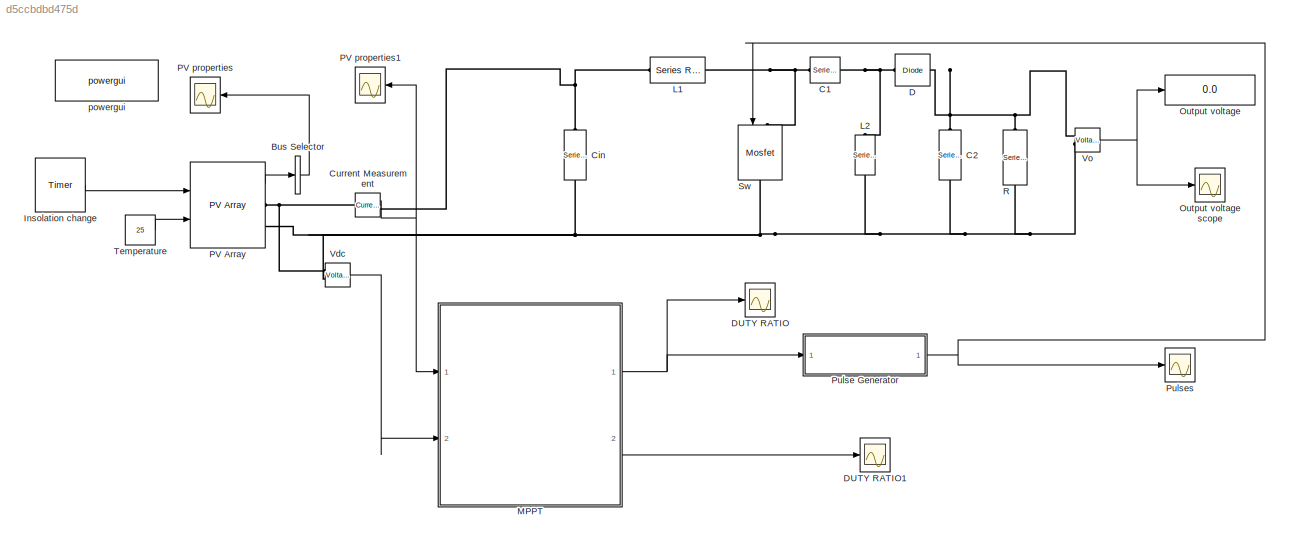
MODEL slx_d5ccbdbd475d
KIND model
CONFIG AbsTol = auto
CONFIG EnableMultiTasking = on
CONFIG FixedStep = 1e-5
CONFIG MaxStep = auto
CONFIG MinStep = auto
CONFIG RelTol = 1e-3
CONFIG SampleTimeConstraint = Unconstrained
CONFIG Solver = ode23
CONFIG SolverName = ode23
CONFIG StartTime = 0.0
CONFIG StopTime = .2
BLOCK [BusSelector] Bus Selector
  OutputAsBus = on
  OutputSignals = V_PV
  Ports = [1, 1]
BLOCK [Reference] C1  REF=powerlib/Elements/Series RLC Branch
  Ports = [0, 0, 0, 0, 0, 1, 1]
  SourceBlock = powerlib/Elements/Series RLC Branch
  SourceProductBaseCode = PS
  SourceProductName = Simscape Power Systems
  SourceType = Series RLC Branch
BLOCK [Reference] C2  REF=powerlib/Elements/Series RLC Branch
  Ports = [0, 0, 0, 0, 0, 1, 1]
  SourceBlock = powerlib/Elements/Series RLC Branch
  SourceProductBaseCode = PS
  SourceProductName = Simscape Power Systems
  SourceType = Series RLC Branch
BLOCK [Reference] Cin  REF=powerlib/Elements/Series RLC Branch
  Ports = [0, 0, 0, 0, 0, 1, 1]
  SourceBlock = powerlib/Elements/Series RLC Branch
  SourceProductBaseCode = PS
  SourceProductName = Simscape Power Systems
  SourceType = Series RLC Branch
BLOCK [Reference] Current Measurement  REF=powerlib/Measurements/Current Measurement
  Ports = [0, 1, 0, 0, 0, 1, 1]
  SourceBlock = powerlib/Measurements/Current Measurement
  SourceProductBaseCode = PS
  SourceProductName = Simscape Power Systems
  SourceType = Current Measurement
  UserDataPersistent = on
BLOCK [Reference] D  REF=powerlib/Power
Electronics/Diode
  Ports = [0, 0, 0, 0, 0, 1, 1]
  SourceBlock = powerlib/Power\nElectronics/Diode
  SourceProductBaseCode = PS
  SourceProductName = Simscape Power Systems
  SourceType = Diode
BLOCK [Scope] DUTY RATIO
  NumInputPorts = 1
  Ports = [1]
  ScopeSpecificationString = Simulink.scopes.TimeScopeBlockCfg('CurrentConfiguration', extmgr.ConfigurationSet(extmgr.Configuration('Core','General UI',true,'FigureColor',[0.501960784313725 0.501960784313725 0.501960784313725]),extmgr.Configuration('Core','Source UI',true),extmgr.Configuration('Sources','WiredSimulink',true,'DataLogging',true,'DataLoggingVariableName','ScopeData1','DataLoggingSaveFormat','StructureWithTime','...<+2865ch>
BLOCK [Scope] DUTY RATIO1
  NumInputPorts = 1
  Ports = [1]
  ScopeSpecificationString = Simulink.scopes.TimeScopeBlockCfg('CurrentConfiguration', extmgr.ConfigurationSet(extmgr.Configuration('Core','General UI',true,'FigureColor',[0.501960784313725 0.501960784313725 0.501960784313725]),extmgr.Configuration('Core','Source UI',true),extmgr.Configuration('Sources','WiredSimulink',true,'DataLogging',true,'DataLoggingVariableName','q','DataLoggingSaveFormat','StructureWithTime','DataLoggi...<+2861ch>
BLOCK [Reference] Insolation change  REF=powerlib_extras/Control 
Blocks/Timer
  Ports = [0, 1]
  SourceBlock = powerlib_extras/Control \nBlocks/Timer
  SourceType = Timer
BLOCK [Reference] L1  REF=powerlib/Elements/Series RLC Branch
  Ports = [0, 0, 0, 0, 0, 1, 1]
  SourceBlock = powerlib/Elements/Series RLC Branch
  SourceProductBaseCode = PS
  SourceProductName = Simscape Power Systems
  SourceType = Series RLC Branch
BLOCK [Reference] L2  REF=powerlib/Elements/Series RLC Branch
  Ports = [0, 0, 0, 0, 0, 1, 1]
  SourceBlock = powerlib/Elements/Series RLC Branch
  SourceProductBaseCode = PS
  SourceProductName = Simscape Power Systems
  SourceType = Series RLC Branch
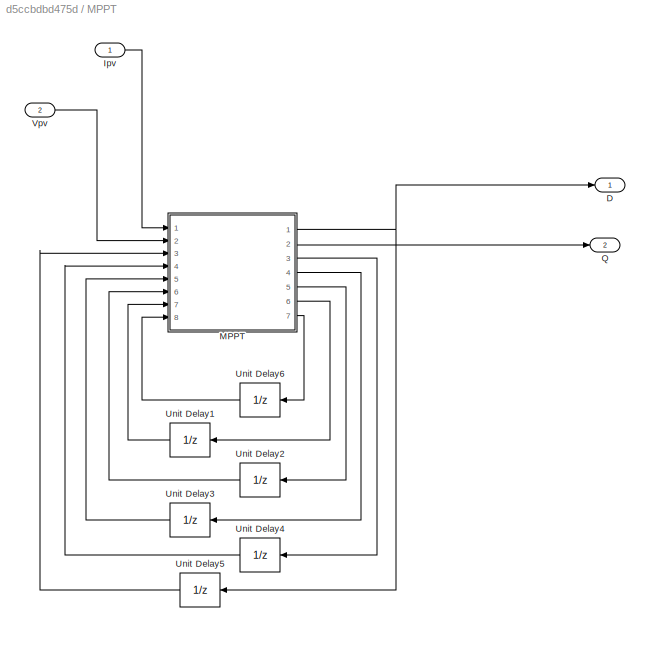
BLOCK [SubSystem] MPPT
  Ports = [2, 2]
  RequestExecContextInheritance = off
  Variant = off
BLOCK [Outport] MPPT/D
  IconDisplay = Port number
BLOCK [Inport] MPPT/Ipv
  IconDisplay = Port number
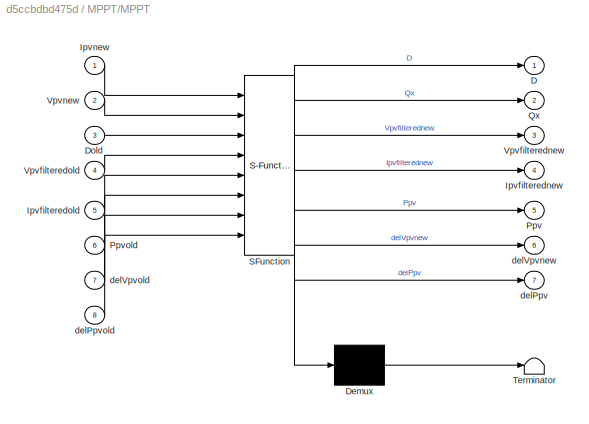
BLOCK [SubSystem] MPPT/MPPT
  ErrorFcn = Stateflow.Translate.translate
  PermitHierarchicalResolution = ExplicitOnly
  Ports = [8, 7]
  RequestExecContextInheritance = off
  SFBlockType = MATLAB Function
  TreatAsAtomicUnit = on
  Variant = off
BLOCK [Demux] MPPT/MPPT/ Demux 
  Outputs = 1
  Ports = [1, 1]
BLOCK [S-Function] MPPT/MPPT/ SFunction 
  EnableBusSupport = on
  FunctionName = sf_sfun
  PortCounts = [8 8]
  Ports = [8, 8]
  SFcnIsStateOwnerBlock = off
  SFunctionDeploymentMode = off
  Tag = Stateflow S-Function AdaptiveMPPT 1
BLOCK [Terminator] MPPT/MPPT/ Terminator 
BLOCK [Outport] MPPT/MPPT/D
  IconDisplay = Port number
BLOCK [Inport] MPPT/MPPT/Dold
  IconDisplay = Port number
  Port = 3
BLOCK [Outport] MPPT/MPPT/Ipvfilterednew
  IconDisplay = Port number
  Port = 4
BLOCK [Inport] MPPT/MPPT/Ipvfilteredold
  IconDisplay = Port number
  Port = 5
BLOCK [Inport] MPPT/MPPT/Ipvnew
  IconDisplay = Port number
BLOCK [Outport] MPPT/MPPT/Ppv
  IconDisplay = Port number
  Port = 5
BLOCK [Inport] MPPT/MPPT/Ppvold
  IconDisplay = Port number
  Port = 6
BLOCK [Outport] MPPT/MPPT/Qx
  IconDisplay = Port number
  Port = 2
BLOCK [Outport] MPPT/MPPT/Vpvfilterednew
  IconDisplay = Port number
  Port = 3
BLOCK [Inport] MPPT/MPPT/Vpvfilteredold
  IconDisplay = Port number
  Port = 4
BLOCK [Inport] MPPT/MPPT/Vpvnew
  IconDisplay = Port number
  Port = 2
BLOCK [Outport] MPPT/MPPT/delPpv
  IconDisplay = Port number
  Port = 7
BLOCK [Inport] MPPT/MPPT/delPpvold
  IconDisplay = Port number
  Port = 8
BLOCK [Outport] MPPT/MPPT/delVpvnew
  IconDisplay = Port number
  Port = 6
BLOCK [Inport] MPPT/MPPT/delVpvold
  IconDisplay = Port number
  Port = 7
BLOCK [Outport] MPPT/Q
  IconDisplay = Port number
  Port = 2
BLOCK [UnitDelay] MPPT/Unit Delay1
  InputProcessing = Columns as channels (frame based)
  SampleTime = 100
BLOCK [UnitDelay] MPPT/Unit Delay2
  InputProcessing = Columns as channels (frame based)
  SampleTime = 100
BLOCK [UnitDelay] MPPT/Unit Delay3
  InputProcessing = Columns as channels (frame based)
  SampleTime = 100
BLOCK [UnitDelay] MPPT/Unit Delay4
  InputProcessing = Columns as channels (frame based)
  SampleTime = 100
BLOCK [UnitDelay] MPPT/Unit Delay5
  InputProcessing = Columns as channels (frame based)
  SampleTime = 100
BLOCK [UnitDelay] MPPT/Unit Delay6
  InputProcessing = Columns as channels (frame based)
  SampleTime = 100
BLOCK [Inport] MPPT/Vpv
  IconDisplay = Port number
  Port = 2
BLOCK [Display] Output voltage
  Decimation = 1
  Ports = [1]
BLOCK [Scope] Output voltage scope
  NumInputPorts = 1
  Ports = [1]
  ScopeSpecificationString = Simulink.scopes.TimeScopeBlockCfg('CurrentConfiguration', extmgr.ConfigurationSet(extmgr.Configuration('Core','General UI',true,'FigureColor',[0.501960784313725 0.501960784313725 0.501960784313725]),extmgr.Configuration('Core','Source UI',true),extmgr.Configuration('Sources','WiredSimulink',true,'DataLogging',true,'DataLoggingVariableName','ScopeData3','DataLoggingSaveFormat','StructureWithTime','...<+3518ch>
BLOCK [Reference] PV Array  REF=re_lib/Solar/PV Array
  Ports = [2, 1, 0, 0, 0, 0, 2]
  SourceBlock = re_lib/Solar/PV Array
  SourceProductBaseCode = PS
  SourceProductName = Simscape Power Systems
  SourceType = PV array
BLOCK [Scope] PV properties
  NumInputPorts = 1
  Ports = [1]
  ScopeSpecificationString = Simulink.scopes.TimeScopeBlockCfg('CurrentConfiguration', extmgr.ConfigurationSet(extmgr.Configuration('Core','General UI',true,'FigureColor',[0.831372549019608 0.815686274509804 0.784313725490196]),extmgr.Configuration('Core','Source UI',true),extmgr.Configuration('Sources','WiredSimulink',true,'DataLogging',true,'DataLoggingSaveFormat','StructureWithTime','DataLoggingDecimation','1','DataLogging...<+2926ch>
BLOCK [Scope] PV properties1
  NumInputPorts = 1
  Ports = [1]
  ScopeSpecificationString = Simulink.scopes.TimeScopeBlockCfg('CurrentConfiguration', extmgr.ConfigurationSet(extmgr.Configuration('Core','General UI',true,'FigureColor',[0.831372549019608 0.815686274509804 0.784313725490196]),extmgr.Configuration('Core','Source UI',true),extmgr.Configuration('Sources','WiredSimulink',true,'DataLoggingSaveFormat','StructureWithTime','DataLoggingDecimation','1','DataLoggingDecimateData',true,...<+2955ch>
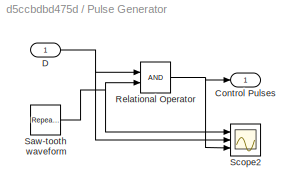
BLOCK [SubSystem] Pulse Generator
  Ports = [1, 1]
  RequestExecContextInheritance = off
  Variant = off
BLOCK [Outport] Pulse Generator/Control Pulses
  IconDisplay = Port number
BLOCK [Inport] Pulse Generator/D
  IconDisplay = Port number
BLOCK [RelationalOperator] Pulse Generator/Relational Operator
  InputSameDT = off
  OutDataTypeStr = boolean
  Ports = [2, 1]
BLOCK [Reference] Pulse Generator/Saw-tooth waveform  REF=simulink/Sources/Repeating
Sequence
  Ports = [0, 1]
  SourceBlock = simulink/Sources/Repeating\nSequence
  SourceProductBaseCode = SL
  SourceProductName = Simulink
  SourceType = Repeating table
BLOCK [Scope] Pulse Generator/Scope2
  NumInputPorts = 3
  Ports = [3]
  ScopeSpecificationString = C++SS(StrPVP('Location','[437, 146, 1019, 578]'),StrPVP('Open','off'),StrPVP('ZoomMode','xonly'),MxPVP('AxesTitles',53,'struct(''axes1'',''Input Voltage'',''axes2'',''Output Voltage'',''axes3'',''Output Current'')'),StrPVP('TimeRange','0.004           '),StrPVP('YMin','5.55112e-017~0.7~0'),StrPVP('YMax','1~0.7~1'),StrPVP('SaveName','ScopeData2'),StrPVP('DataFormat','StructureWithTime'),StrPVP('Blo...<+118ch>
BLOCK [Scope] Pulses
  NumInputPorts = 1
  Ports = [1]
  ScopeSpecificationString = Simulink.scopes.TimeScopeBlockCfg('CurrentConfiguration', extmgr.ConfigurationSet(extmgr.Configuration('Core','General UI',true,'FigureColor',[0.501960784313725 0.501960784313725 0.501960784313725]),extmgr.Configuration('Core','Source UI',true),extmgr.Configuration('Sources','WiredSimulink',true,'DataLogging',true,'DataLoggingVariableName','ScopeData4','DataLoggingSaveFormat','StructureWithTime','...<+2884ch>
BLOCK [Reference] R  REF=powerlib/Elements/Series RLC Branch
  Ports = [0, 0, 0, 0, 0, 1, 1]
  SourceBlock = powerlib/Elements/Series RLC Branch
  SourceProductBaseCode = PS
  SourceProductName = Simscape Power Systems
  SourceType = Series RLC Branch
BLOCK [Reference] Sw  REF=powerlib/Power
Electronics/Mosfet
  Ports = [1, 0, 0, 0, 0, 1, 1]
  SourceBlock = powerlib/Power\nElectronics/Mosfet
  SourceProductBaseCode = PS
  SourceProductName = Simscape Power Systems
  SourceType = Mosfet
BLOCK [Constant] Temperature
  SampleTime = 2e-5
  Value = 25
  VectorParams1D = off
BLOCK [Reference] Vdc   REF=powerlib/Measurements/Voltage Measurement
  AttributesFormatString = \n
  Ports = [0, 1, 0, 0, 0, 2]
  SourceBlock = powerlib/Measurements/Voltage Measurement
  SourceProductBaseCode = PS
  SourceProductName = Simscape Power Systems
  SourceType = Voltage Measurement
  Tag = PoWeRsYsTeMmEaSuReMeNt
BLOCK [Reference] Vo  REF=powerlib/Measurements/Voltage Measurement
  Ports = [0, 1, 0, 0, 0, 2]
  SourceBlock = powerlib/Measurements/Voltage Measurement
  SourceProductBaseCode = PS
  SourceProductName = Simscape Power Systems
  SourceType = Voltage Measurement
BLOCK [Reference] powergui  REF=powerlib/powergui
  Ports = []
  Priority = 1
  SourceBlock = powerlib/powergui
  SourceProductBaseCode = PS
  SourceProductName = Simscape Power Systems
  SourceType = PSB option menu block
LINE Bus Selector:1 -> PV properties:1
NET Current Measurement:1 -> MPPT:1, PV properties1:1
LINE Insolation change:1 -> PV Array:1
LINE MPPT/Ipv:1 -> MPPT/MPPT:1
NET MPPT/MPPT:1 -> MPPT/D:1, MPPT/Unit Delay5:1
LINE MPPT/MPPT:2 -> MPPT/Q:1
LINE MPPT/MPPT:3 -> MPPT/Unit Delay4:1
LINE MPPT/MPPT:4 -> MPPT/Unit Delay3:1
LINE MPPT/MPPT:5 -> MPPT/Unit Delay2:1
LINE MPPT/MPPT:6 -> MPPT/Unit Delay1:1
LINE MPPT/MPPT:7 -> MPPT/Unit Delay6:1
LINE MPPT/Unit Delay1:1 -> MPPT/MPPT:7
LINE MPPT/Unit Delay2:1 -> MPPT/MPPT:6
LINE MPPT/Unit Delay3:1 -> MPPT/MPPT:5
LINE MPPT/Unit Delay4:1 -> MPPT/MPPT:4
LINE MPPT/Unit Delay5:1 -> MPPT/MPPT:3
LINE MPPT/Unit Delay6:1 -> MPPT/MPPT:8
LINE MPPT/Vpv:1 -> MPPT/MPPT:2
NET MPPT:1 -> DUTY RATIO:1, Pulse Generator:1
LINE MPPT:2 -> DUTY RATIO1:1
LINE PV Array:1 -> Bus Selector:1
NET Pulse Generator/D:1 -> Pulse Generator/Relational Operator:1, Pulse Generator/Scope2:2
NET Pulse Generator/Relational Operator:1 -> Pulse Generator/Control Pulses:1, Pulse Generator/Scope2:3
NET Pulse Generator/Saw-tooth waveform:1 -> Pulse Generator/Relational Operator:2, Pulse Generator/Scope2:1
NET Pulse Generator:1 -> Pulses:1, Sw:1
LINE Temperature:1 -> PV Array:2
LINE Vdc :1 -> MPPT:2
NET Vo:1 -> Output voltage scope:1, Output voltage:1
PNET net1: C1:LConn1 -- L1:RConn1 -- Sw:LConn1
PNET net2: C1:RConn1 -- D:LConn1 -- L2:LConn1
PNET net3: C2:LConn1 -- D:RConn1 -- R:LConn1 -- Vo:LConn1
PNET net4: C2:RConn1 -- Cin:RConn1 -- L2:RConn1 -- PV Array:RConn2 -- R:RConn1 -- Sw:RConn1 -- Vdc :LConn2 -- Vo:LConn2
PNET net5: Cin:LConn1 -- Current Measurement:RConn1 -- L1:LConn1
PNET net6: Current Measurement:LConn1 -- PV Array:RConn1 -- Vdc :LConn1
note: NET lines group one-source signal fan-out (src -> all destinations, sorted); 1:1 wires keep LINE; PNET lines group multi-terminal physical nets as a canonical sorted terminal list (undirected conserving connections); 2-terminal nets keep the pairwise PLINE form
CHART MPPT/MPPT states=1 transitions=1
  STATE_LABEL 'eML_blk_kernel()'
  STATE_LABEL 'SCRIPT:\nfunction [D,Qx,Vpvfilterednew,Ipvfilterednew,Ppv,delVpvnew,delPpv]  = MPPT( Ipvnew, Vpvnew,Dold,Vpvfilteredold,Ipvfilteredold,Ppvold,delVpvold,delPpvold)\nTdel = 2e-5;\nt = 15.9e-3;\na = (Tdel/(Tdel+t));\nKp=0;\nKi=0;\ndisp(Vpvnew);\nVpvfilterednew = ((Vpvfilteredold*(a-1))+(a*(Vpvnew)));\nIpvfilterednew = ((Ipvfilteredold*(a-1))+(a*(Ipvnew)));\nPpv = Vpvfilterednew * Ipvfilterednew;\ndelPpv = Ppvol...<+416ch>'
